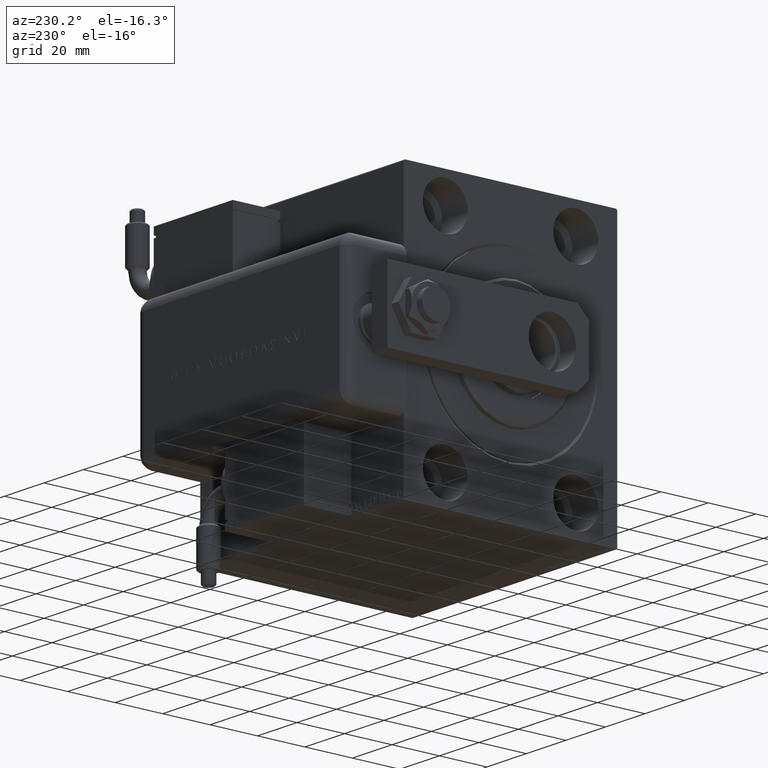
[diagram: clean part render]
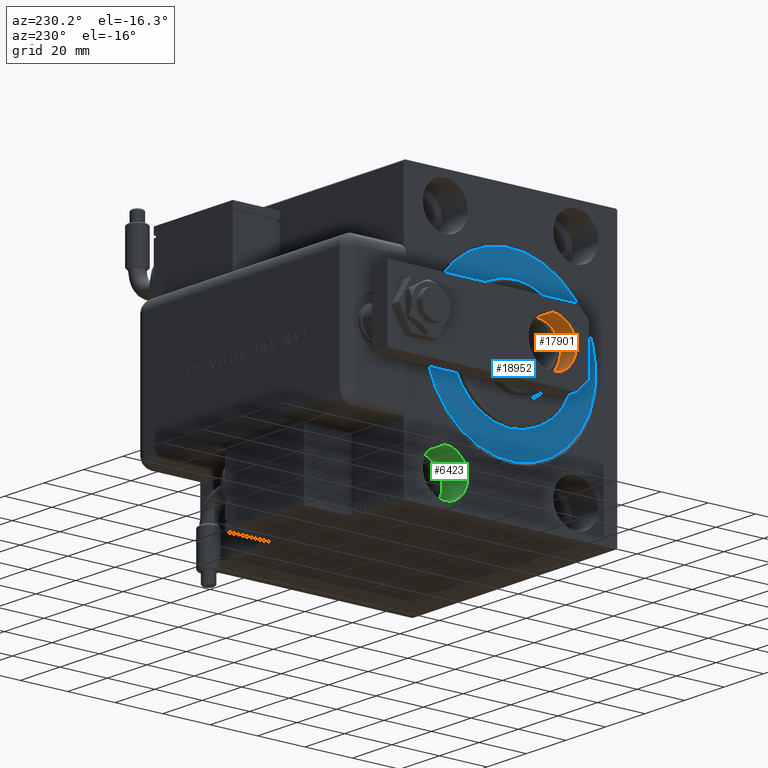
[diagram: same view with three faces highlighted in distinct colors, each labeled with its STEP entity id]
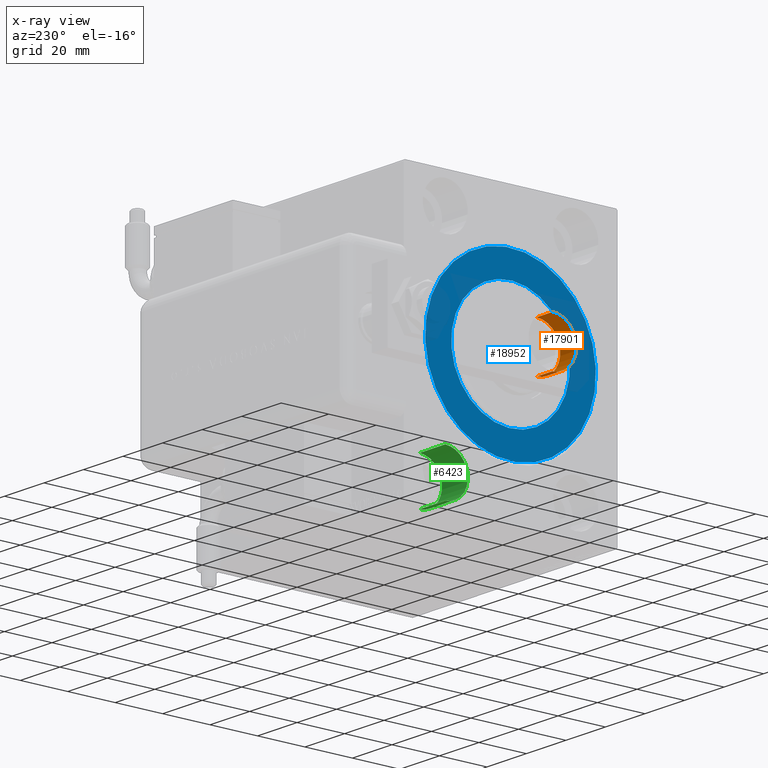
[diagram: x-ray of the same camera — body ghosted, the three highlighted faces saturated]
A machine part, auxiliary view with three faces highlighted in distinct colors.
The next image is the same camera in x-ray (body ghosted, the three faces saturated) — at least one of them is partly hidden behind the body in this view.
Their STEP definitions:

[orange] entity #17901 — the highlighted cylindrical surface (edge-blend (fillet) strip) has radius 10 mm, axis along (-1, -0, 0).
#1543 = CARTESIAN_POINT ( 'NONE',  ( 10.00000000000000711, 15.50000000000000888, 8.000000000000000000 ) ) ;
#1949 = DIRECTION ( 'NONE',  ( 0.000000000000000000, 0.000000000000000000, 1.000000000000000000 ) ) ;
#3304 = CIRCLE ( 'NONE', #37970, 10.00000000000000711 ) ;
#5755 = CARTESIAN_POINT ( 'NONE',  ( -10.00000000000000711, 15.50000000000000711, 0.000000000000000000 ) ) ;
#7934 = VERTEX_POINT ( 'NONE', #57563 ) ;
#9638 = EDGE_CURVE ( 'NONE', #7934, #32127, #27746, .T. ) ;
#10840 = EDGE_LOOP ( 'NONE', ( #30240, #32260, #13761, #37565 ) ) ;
#13168 = CYLINDRICAL_SURFACE ( 'NONE', #47715, 10.00000000000000711 ) ;
#13525 = DIRECTION ( 'NONE',  ( -0.000000000000000000, -0.000000000000000000, -1.000000000000000000 ) ) ;
#13761 = ORIENTED_EDGE ( 'NONE', *, *, #21781, .F. ) ;
#14032 = VERTEX_POINT ( 'NONE', #17931 ) ;
#15592 = EDGE_CURVE ( 'NONE', #7934, #27921, #32746, .T. ) ;
#17901 = ADVANCED_FACE ( 'NONE', ( #55671 ), #13168, .F. ) ;
#17931 = CARTESIAN_POINT ( 'NONE',  ( 10.00000000000000711, 15.50000000000000888, 0.000000000000000000 ) ) ;
#20668 = DIRECTION ( 'NONE',  ( 0.000000000000000000, 0.000000000000000000, 1.000000000000000000 ) ) ;
#20846 = DIRECTION ( 'NONE',  ( 1.000000000000000000, 0.000000000000000000, 0.000000000000000000 ) ) ;
#21781 = EDGE_CURVE ( 'NONE', #27921, #14032, #3304, .T. ) ;
#24151 = LINE ( 'NONE', #57967, #36560 ) ;
#27746 = CIRCLE ( 'NONE', #41615, 10.00000000000000711 ) ;
#27921 = VERTEX_POINT ( 'NONE', #5755 ) ;
#30240 = ORIENTED_EDGE ( 'NONE', *, *, #9638, .T. ) ;
#32072 = DIRECTION ( 'NONE',  ( -0.000000000000000000, -0.000000000000000000, -1.000000000000000000 ) ) ;
#32127 = VERTEX_POINT ( 'NONE', #1543 ) ;
#32260 = ORIENTED_EDGE ( 'NONE', *, *, #55568, .T. ) ;
#32746 = LINE ( 'NONE', #60073, #54725 ) ;
#35242 = CARTESIAN_POINT ( 'NONE',  ( 0.000000000000000000, 15.50000000000000711, 8.000000000000000000 ) ) ;
#35827 = CARTESIAN_POINT ( 'NONE',  ( 0.000000000000000000, 15.50000000000000711, 8.000000000000000000 ) ) ;
#36560 = VECTOR ( 'NONE', #53925, 1000.000000000000000 ) ;
#37565 = ORIENTED_EDGE ( 'NONE', *, *, #15592, .F. ) ;
#37970 = AXIS2_PLACEMENT_3D ( 'NONE', #42593, #1949, #20846 ) ;
#41615 = AXIS2_PLACEMENT_3D ( 'NONE', #35242, #20668, #58825 ) ;
#42593 = CARTESIAN_POINT ( 'NONE',  ( 0.000000000000000000, 15.50000000000000711, 0.000000000000000000 ) ) ;
#47715 = AXIS2_PLACEMENT_3D ( 'NONE', #35827, #32072, #51020 ) ;
#51020 = DIRECTION ( 'NONE',  ( -1.000000000000000000, 0.000000000000000000, 0.000000000000000000 ) ) ;
#53925 = DIRECTION ( 'NONE',  ( -0.000000000000000000, -0.000000000000000000, -1.000000000000000000 ) ) ;
#54725 = VECTOR ( 'NONE', #13525, 1000.000000000000000 ) ;
#55568 = EDGE_CURVE ( 'NONE', #32127, #14032, #24151, .T. ) ;
#55671 = FACE_OUTER_BOUND ( 'NONE', #10840, .T. ) ;
#57563 = CARTESIAN_POINT ( 'NONE',  ( -10.00000000000000711, 15.50000000000000711, 8.000000000000000000 ) ) ;
#57967 = CARTESIAN_POINT ( 'NONE',  ( 10.00000000000000711, 15.50000000000000888, 8.000000000000000000 ) ) ;
#58825 = DIRECTION ( 'NONE',  ( 1.000000000000000000, 0.000000000000000000, 0.000000000000000000 ) ) ;
#60073 = CARTESIAN_POINT ( 'NONE',  ( -10.00000000000000711, 15.50000000000000711, 8.000000000000000000 ) ) ;

[blue] entity #18952 — the highlighted planar face has unit normal (1, 0, -0).
#1761 = DIRECTION ( 'NONE',  ( 0.000000000000000000, 0.000000000000000000, 1.000000000000000000 ) ) ;
#2079 = DIRECTION ( 'NONE',  ( 1.000000000000000000, -0.000000000000000000, 0.000000000000000000 ) ) ;
#3035 = FACE_BOUND ( 'NONE', #32875, .T. ) ;
#4255 = DIRECTION ( 'NONE',  ( 0.000000000000000000, 0.000000000000000000, -1.000000000000000000 ) ) ;
#4467 = CIRCLE ( 'NONE', #56971, 36.00000000000000000 ) ;
#4661 = EDGE_LOOP ( 'NONE', ( #53694, #60164 ) ) ;
#4759 = EDGE_CURVE ( 'NONE', #60461, #10090, #44398, .T. ) ;
#6403 = DIRECTION ( 'NONE',  ( -1.000000000000000000, 0.000000000000000000, 0.000000000000000000 ) ) ;
#6736 = CARTESIAN_POINT ( 'NONE',  ( 0.000000000000000000, 3.061616997868383043E-15, -25.00000000000000000 ) ) ;
#7045 = CIRCLE ( 'NONE', #10043, 25.00000000000000000 ) ;
#8292 = DIRECTION ( 'NONE',  ( -1.000000000000000000, 0.000000000000000000, 0.000000000000000000 ) ) ;
#9004 = VERTEX_POINT ( 'NONE', #59707 ) ;
#9789 = CIRCLE ( 'NONE', #9824, 25.00000000000000000 ) ;
#9824 = AXIS2_PLACEMENT_3D ( 'NONE', #58529, #2079, #21582 ) ;
#10043 = AXIS2_PLACEMENT_3D ( 'NONE', #52342, #19431, #4255 ) ;
#10090 = VERTEX_POINT ( 'NONE', #32329 ) ;
#11893 = EDGE_CURVE ( 'NONE', #32298, #9004, #7045, .T. ) ;
#18952 = ADVANCED_FACE ( 'NONE', ( #3035, #21938 ), #50802, .F. ) ;
#19431 = DIRECTION ( 'NONE',  ( 1.000000000000000000, -0.000000000000000000, 0.000000000000000000 ) ) ;
#20042 = AXIS2_PLACEMENT_3D ( 'NONE', #55454, #8292, #27202 ) ;
#20382 = ORIENTED_EDGE ( 'NONE', *, *, #11893, .F. ) ;
#21582 = DIRECTION ( 'NONE',  ( 0.000000000000000000, 0.000000000000000000, -1.000000000000000000 ) ) ;
#21938 = FACE_OUTER_BOUND ( 'NONE', #4661, .T. ) ;
#22604 = AXIS2_PLACEMENT_3D ( 'NONE', #48898, #6403, #1761 ) ;
#24423 = DIRECTION ( 'NONE',  ( -1.000000000000000000, 0.000000000000000000, 0.000000000000000000 ) ) ;
#26555 = EDGE_CURVE ( 'NONE', #10090, #60461, #4467, .T. ) ;
#26919 = CARTESIAN_POINT ( 'NONE',  ( 0.000000000000000000, 4.408728476930470856E-15, 36.00000000000000000 ) ) ;
#27202 = DIRECTION ( 'NONE',  ( 0.000000000000000000, 0.000000000000000000, 1.000000000000000000 ) ) ;
#32298 = VERTEX_POINT ( 'NONE', #6736 ) ;
#32329 = CARTESIAN_POINT ( 'NONE',  ( 0.000000000000000000, 0.000000000000000000, -36.00000000000000000 ) ) ;
#32875 = EDGE_LOOP ( 'NONE', ( #59348, #20382 ) ) ;
#37777 = CARTESIAN_POINT ( 'NONE',  ( 0.000000000000000000, 0.000000000000000000, 0.000000000000000000 ) ) ;
#44398 = CIRCLE ( 'NONE', #22604, 36.00000000000000000 ) ;
#47394 = DIRECTION ( 'NONE',  ( 0.000000000000000000, 0.000000000000000000, 1.000000000000000000 ) ) ;
#48898 = CARTESIAN_POINT ( 'NONE',  ( 0.000000000000000000, 0.000000000000000000, 0.000000000000000000 ) ) ;
#50802 = PLANE ( 'NONE',  #20042 ) ;
#50953 = EDGE_CURVE ( 'NONE', #9004, #32298, #9789, .T. ) ;
#52342 = CARTESIAN_POINT ( 'NONE',  ( 0.000000000000000000, 0.000000000000000000, 0.000000000000000000 ) ) ;
#53694 = ORIENTED_EDGE ( 'NONE', *, *, #26555, .F. ) ;
#55454 = CARTESIAN_POINT ( 'NONE',  ( 0.000000000000000000, 0.000000000000000000, 0.000000000000000000 ) ) ;
#56971 = AXIS2_PLACEMENT_3D ( 'NONE', #37777, #24423, #47394 ) ;
#58529 = CARTESIAN_POINT ( 'NONE',  ( 0.000000000000000000, 0.000000000000000000, 0.000000000000000000 ) ) ;
#59348 = ORIENTED_EDGE ( 'NONE', *, *, #50953, .F. ) ;
#59707 = CARTESIAN_POINT ( 'NONE',  ( 0.000000000000000000, 0.000000000000000000, 25.00000000000000000 ) ) ;
#60164 = ORIENTED_EDGE ( 'NONE', *, *, #4759, .F. ) ;
#60461 = VERTEX_POINT ( 'NONE', #26919 ) ;

[green] entity #6423 — the highlighted cylindrical surface (edge-blend (fillet) strip) has radius 9.5 mm, axis along (-1, -0, -0).
#1638 = CARTESIAN_POINT ( 'NONE',  ( 13.00000000000000000, 27.49999999999998934, -44.99999999999998579 ) ) ;
#2686 = VECTOR ( 'NONE', #30419, 1000.000000000000000 ) ;
#3094 = VERTEX_POINT ( 'NONE', #55991 ) ;
#4565 = AXIS2_PLACEMENT_3D ( 'NONE', #42709, #43011, #56989 ) ;
#5447 = EDGE_CURVE ( 'NONE', #49627, #3094, #61283, .T. ) ;
#6423 = ADVANCED_FACE ( 'NONE', ( #34802 ), #44714, .F. ) ;
#7796 = AXIS2_PLACEMENT_3D ( 'NONE', #37525, #61105, #56759 ) ;
#8900 = CARTESIAN_POINT ( 'NONE',  ( 0.000000000000000000, 27.49999999999998934, -54.49999999999998579 ) ) ;
#10530 = CIRCLE ( 'NONE', #4565, 9.500000000000001776 ) ;
#11501 = CARTESIAN_POINT ( 'NONE',  ( 13.00000000000000000, 27.49999999999998934, -35.49999999999998579 ) ) ;
#12433 = ORIENTED_EDGE ( 'NONE', *, *, #43456, .F. ) ;
#15632 = EDGE_LOOP ( 'NONE', ( #12433, #50892, #47202, #31673 ) ) ;
#16146 = LINE ( 'NONE', #11501, #2686 ) ;
#18665 = VERTEX_POINT ( 'NONE', #34996 ) ;
#19105 = DIRECTION ( 'NONE',  ( -1.000000000000000000, -0.000000000000000000, -0.000000000000000000 ) ) ;
#24018 = CARTESIAN_POINT ( 'NONE',  ( 13.00000000000000000, 27.49999999999998934, -35.49999999999998579 ) ) ;
#25188 = DIRECTION ( 'NONE',  ( 0.000000000000000000, 0.000000000000000000, 1.000000000000000000 ) ) ;
#29323 = LINE ( 'NONE', #43588, #47325 ) ;
#30419 = DIRECTION ( 'NONE',  ( -1.000000000000000000, -0.000000000000000000, -0.000000000000000000 ) ) ;
#30904 = EDGE_CURVE ( 'NONE', #56218, #3094, #16146, .T. ) ;
#31673 = ORIENTED_EDGE ( 'NONE', *, *, #30904, .F. ) ;
#34802 = FACE_OUTER_BOUND ( 'NONE', #15632, .T. ) ;
#34996 = CARTESIAN_POINT ( 'NONE',  ( 13.00000000000000000, 27.49999999999998934, -54.49999999999998579 ) ) ;
#37525 = CARTESIAN_POINT ( 'NONE',  ( 0.000000000000000000, 27.49999999999998934, -44.99999999999998579 ) ) ;
#42709 = CARTESIAN_POINT ( 'NONE',  ( 13.00000000000000000, 27.49999999999998934, -44.99999999999998579 ) ) ;
#43011 = DIRECTION ( 'NONE',  ( -1.000000000000000000, 0.000000000000000000, 0.000000000000000000 ) ) ;
#43456 = EDGE_CURVE ( 'NONE', #18665, #56218, #10530, .T. ) ;
#43588 = CARTESIAN_POINT ( 'NONE',  ( 13.00000000000000000, 27.49999999999998934, -54.49999999999998579 ) ) ;
#44714 = CYLINDRICAL_SURFACE ( 'NONE', #55348, 9.500000000000001776 ) ;
#47202 = ORIENTED_EDGE ( 'NONE', *, *, #5447, .T. ) ;
#47325 = VECTOR ( 'NONE', #19105, 1000.000000000000000 ) ;
#47932 = EDGE_CURVE ( 'NONE', #18665, #49627, #29323, .T. ) ;
#49627 = VERTEX_POINT ( 'NONE', #8900 ) ;
#50892 = ORIENTED_EDGE ( 'NONE', *, *, #47932, .T. ) ;
#55348 = AXIS2_PLACEMENT_3D ( 'NONE', #1638, #59303, #25188 ) ;
#55991 = CARTESIAN_POINT ( 'NONE',  ( 0.000000000000000000, 27.49999999999998934, -35.49999999999998579 ) ) ;
#56218 = VERTEX_POINT ( 'NONE', #24018 ) ;
#56759 = DIRECTION ( 'NONE',  ( 0.000000000000000000, 0.000000000000000000, 1.000000000000000000 ) ) ;
#56989 = DIRECTION ( 'NONE',  ( 0.000000000000000000, 0.000000000000000000, 1.000000000000000000 ) ) ;
#59303 = DIRECTION ( 'NONE',  ( -1.000000000000000000, -0.000000000000000000, -0.000000000000000000 ) ) ;
#61105 = DIRECTION ( 'NONE',  ( -1.000000000000000000, 0.000000000000000000, 0.000000000000000000 ) ) ;
#61283 = CIRCLE ( 'NONE', #7796, 9.500000000000001776 ) ;